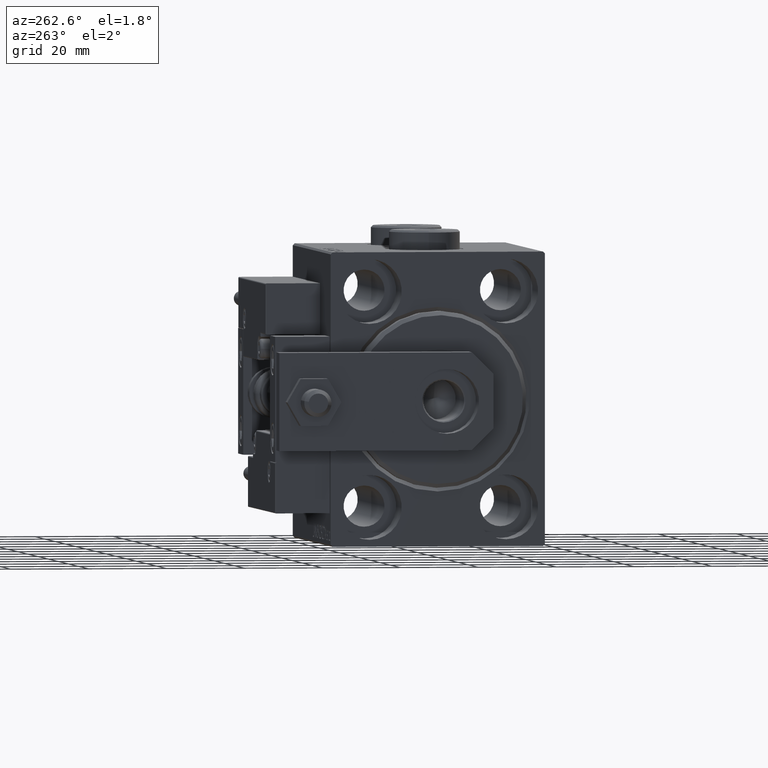
[diagram: clean part render]
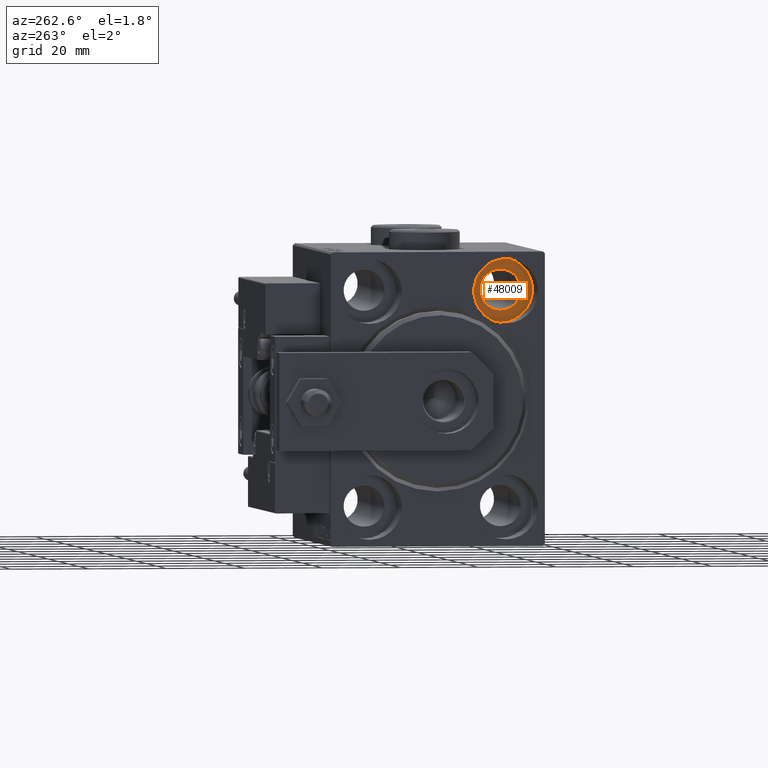
[diagram: same view with one face highlighted and labeled with its STEP entity id]
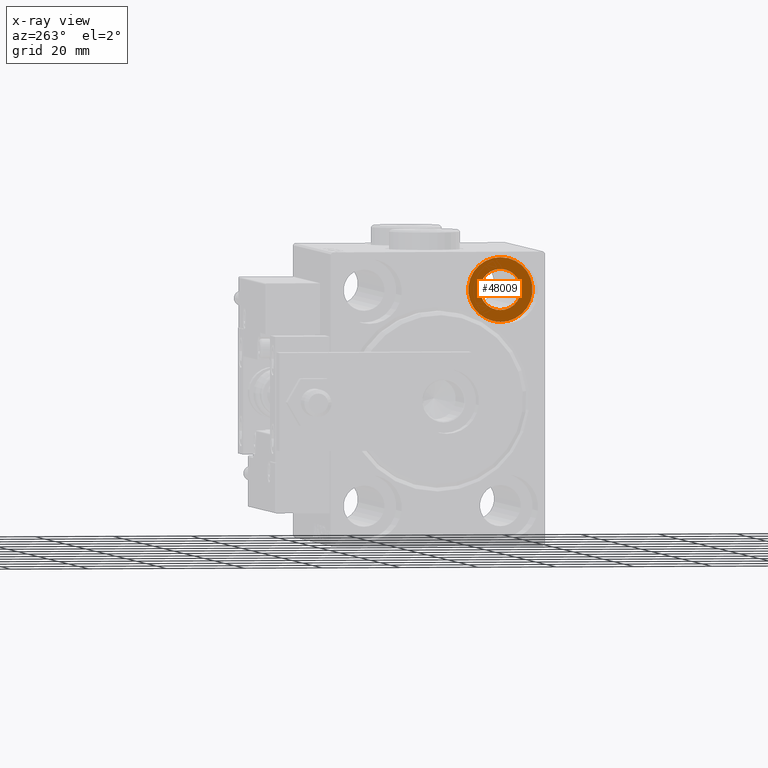
[diagram: x-ray of the same camera — body ghosted, the highlighted face saturated]
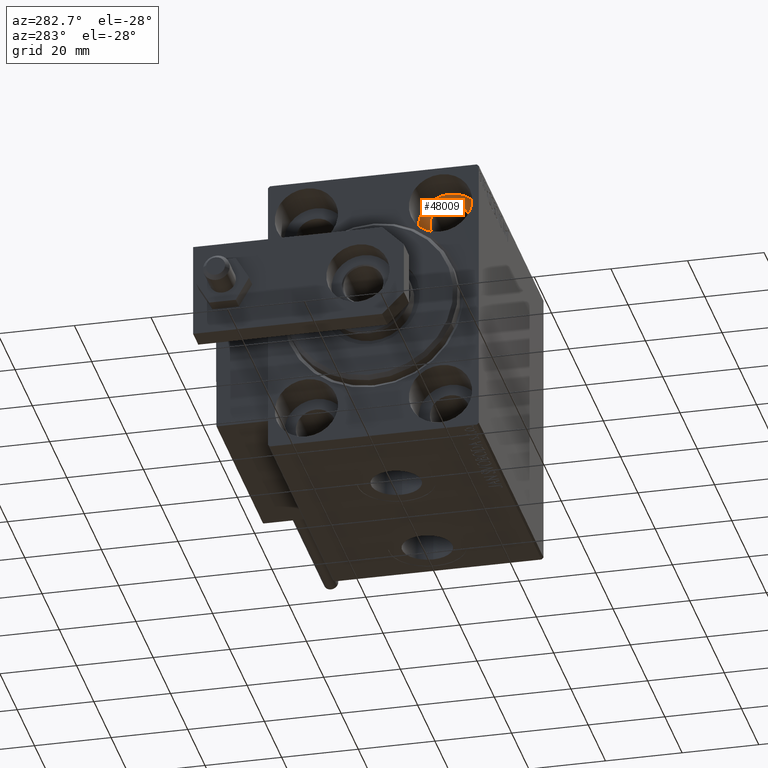
[diagram: same view with one face highlighted and labeled with its STEP entity id]
A machine part, auxiliary view. The second image highlights one B-rep face of the part: STEP entity #48009.
The next image is the same camera in x-ray: the body ghosted, the highlighted face saturated — about 0% of this face is hidden behind the body in this view.
A second angle (auxiliary view) of the same face is appended — the face is thin or edge-on in the first view.
In plain terms, the highlighted planar face has unit normal (-1, 0, 0).
Its self-contained STEP definition (entity closure, byte-faithful):
#1686 = CARTESIAN_POINT ( 'NONE',  ( 11.00000000000000000, -17.49999999999999645, 27.49999999999999645 ) ) ;
#1861 = DIRECTION ( 'NONE',  ( 0.000000000000000000, 0.000000000000000000, 1.000000000000000000 ) ) ;
#2343 = EDGE_LOOP ( 'NONE', ( #28855, #44100 ) ) ;
#5844 = DIRECTION ( 'NONE',  ( 0.000000000000000000, 0.000000000000000000, 1.000000000000000000 ) ) ;
#7750 = CARTESIAN_POINT ( 'NONE',  ( 11.00000000000000000, -17.49999999999999645, 19.25000000000000000 ) ) ;
#9665 = AXIS2_PLACEMENT_3D ( 'NONE', #1686, #49366, #5844 ) ;
#11844 = CARTESIAN_POINT ( 'NONE',  ( 11.00000000000000000, -17.49999999999999645, 35.74999999999999289 ) ) ;
#13577 = CARTESIAN_POINT ( 'NONE',  ( 10.99999999999999645, -17.49999999999999645, 27.49999999999999645 ) ) ;
#14060 = EDGE_CURVE ( 'NONE', #30441, #30273, #50424, .T. ) ;
#14270 = EDGE_CURVE ( 'NONE', #30273, #30441, #43767, .T. ) ;
#16341 = AXIS2_PLACEMENT_3D ( 'NONE', #43443, #34860, #35351 ) ;
#17955 = CIRCLE ( 'NONE', #9665, 8.249999999999992895 ) ;
#19593 = ORIENTED_EDGE ( 'NONE', *, *, #30966, .T. ) ;
#22383 = PLANE ( 'NONE',  #44606 ) ;
#22973 = AXIS2_PLACEMENT_3D ( 'NONE', #44812, #28627, #33050 ) ;
#26033 = DIRECTION ( 'NONE',  ( 0.000000000000000000, 0.000000000000000000, 1.000000000000000000 ) ) ;
#27059 = DIRECTION ( 'NONE',  ( -1.000000000000000000, 0.000000000000000000, 0.000000000000000000 ) ) ;
#28376 = CARTESIAN_POINT ( 'NONE',  ( 10.99999999999999645, -17.49999999999999645, 22.25000000000000000 ) ) ;
#28627 = DIRECTION ( 'NONE',  ( -1.000000000000000000, 0.000000000000000000, 0.000000000000000000 ) ) ;
#28855 = ORIENTED_EDGE ( 'NONE', *, *, #14060, .F. ) ;
#30273 = VERTEX_POINT ( 'NONE', #28376 ) ;
#30300 = EDGE_LOOP ( 'NONE', ( #35606, #19593 ) ) ;
#30441 = VERTEX_POINT ( 'NONE', #31693 ) ;
#30966 = EDGE_CURVE ( 'NONE', #31998, #32311, #17955, .T. ) ;
#31693 = CARTESIAN_POINT ( 'NONE',  ( 10.99999999999999645, -17.49999999999999645, 32.74999999999999289 ) ) ;
#31959 = EDGE_CURVE ( 'NONE', #32311, #31998, #40423, .T. ) ;
#31998 = VERTEX_POINT ( 'NONE', #7750 ) ;
#32311 = VERTEX_POINT ( 'NONE', #11844 ) ;
#33050 = DIRECTION ( 'NONE',  ( 0.000000000000000000, 0.000000000000000000, 1.000000000000000000 ) ) ;
#34860 = DIRECTION ( 'NONE',  ( -1.000000000000000000, 0.000000000000000000, 0.000000000000000000 ) ) ;
#35351 = DIRECTION ( 'NONE',  ( 0.000000000000000000, 0.000000000000000000, 1.000000000000000000 ) ) ;
#35606 = ORIENTED_EDGE ( 'NONE', *, *, #31959, .T. ) ;
#37272 = DIRECTION ( 'NONE',  ( -1.000000000000000000, 0.000000000000000000, 0.000000000000000000 ) ) ;
#39045 = FACE_BOUND ( 'NONE', #2343, .T. ) ;
#40423 = CIRCLE ( 'NONE', #16341, 8.249999999999992895 ) ;
#43443 = CARTESIAN_POINT ( 'NONE',  ( 11.00000000000000000, -17.49999999999999645, 27.49999999999999645 ) ) ;
#43736 = AXIS2_PLACEMENT_3D ( 'NONE', #13577, #37272, #1861 ) ;
#43767 = CIRCLE ( 'NONE', #22973, 5.249999999999997335 ) ;
#44100 = ORIENTED_EDGE ( 'NONE', *, *, #14270, .F. ) ;
#44606 = AXIS2_PLACEMENT_3D ( 'NONE', #51060, #27059, #26033 ) ;
#44812 = CARTESIAN_POINT ( 'NONE',  ( 10.99999999999999645, -17.49999999999999645, 27.49999999999999645 ) ) ;
#46127 = FACE_OUTER_BOUND ( 'NONE', #30300, .T. ) ;
#48009 = ADVANCED_FACE ( 'NONE', ( #39045, #46127 ), #22383, .T. ) ;
#49366 = DIRECTION ( 'NONE',  ( -1.000000000000000000, 0.000000000000000000, 0.000000000000000000 ) ) ;
#50424 = CIRCLE ( 'NONE', #43736, 5.249999999999997335 ) ;
#51060 = CARTESIAN_POINT ( 'NONE',  ( 11.00000000000000000, 0.000000000000000000, 0.000000000000000000 ) ) ;